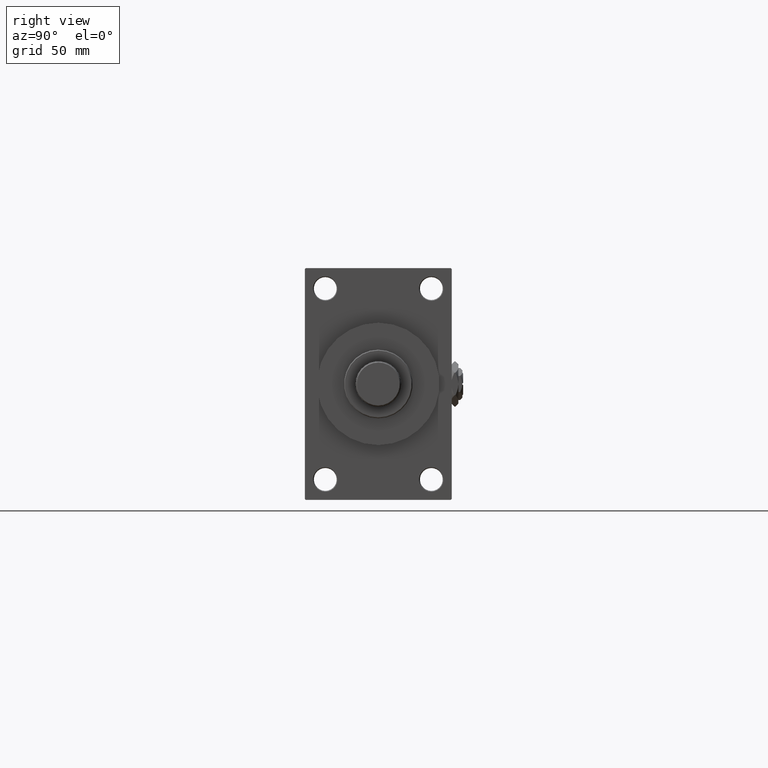
[diagram: clean part render]
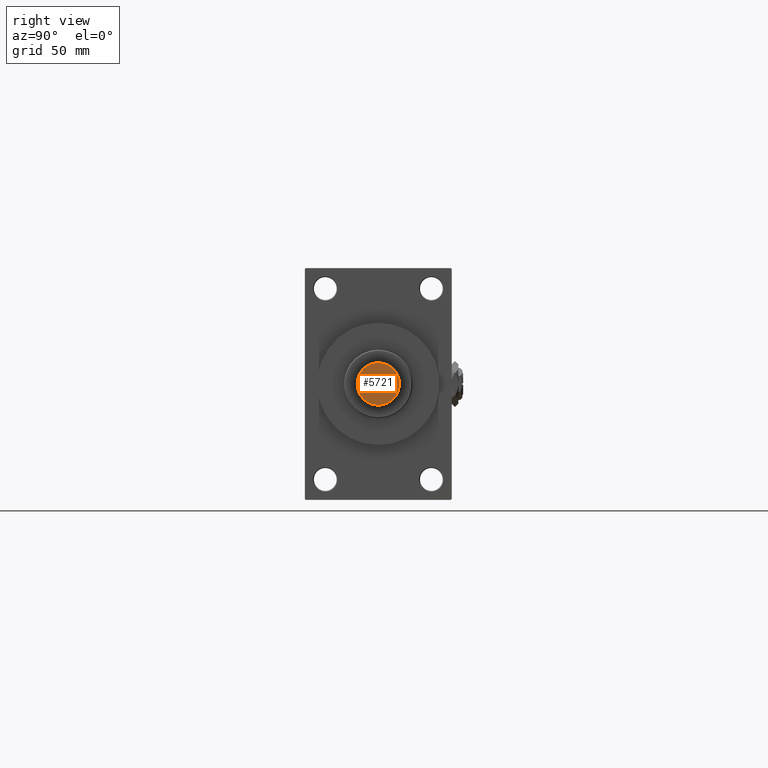
[diagram: same view with one face highlighted and labeled with its STEP entity id]
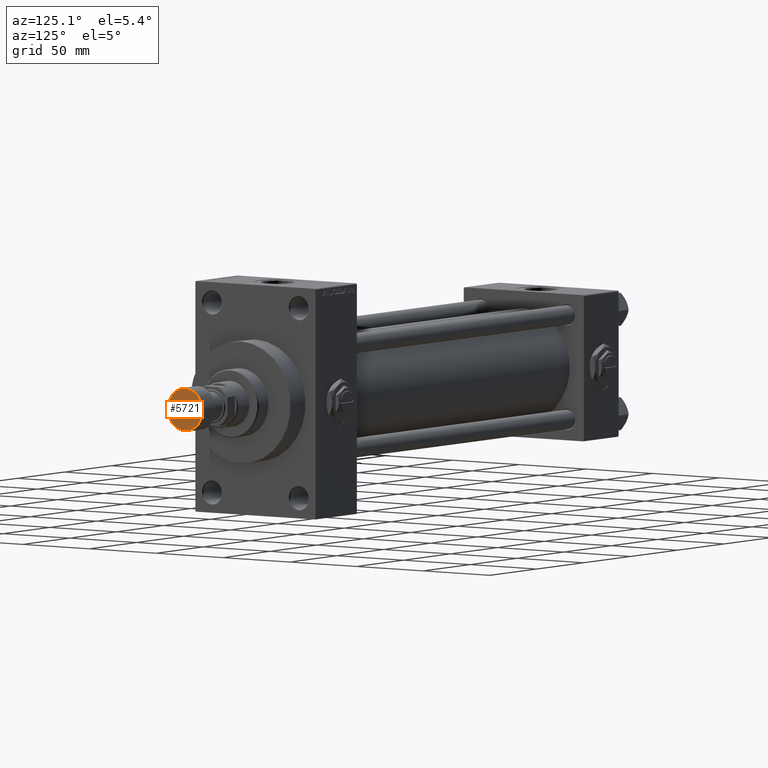
[diagram: same view with one face highlighted and labeled with its STEP entity id]
A machine part, right view. The second image highlights one B-rep face of the part: STEP entity #5721.
A second angle (auxiliary view) of the same face is appended — the face is thin or edge-on in the first view.
In plain terms, the highlighted planar face has unit normal (1, 0, 0).
Its self-contained STEP definition (entity closure, byte-faithful):
#956 = DIRECTION ( 'NONE',  ( 0.000000000000000000, 0.000000000000000000, 1.000000000000000000 ) ) ;
#1571 = CARTESIAN_POINT ( 'NONE',  ( -13.00000000000000000, 1.622657008870242882E-15, 0.000000000000000000 ) ) ;
#4986 = CARTESIAN_POINT ( 'NONE',  ( 0.000000000000000000, 0.000000000000000000, 0.000000000000000000 ) ) ;
#5721 = ADVANCED_FACE ( 'NONE', ( #24106 ), #20096, .T. ) ;
#7323 = CARTESIAN_POINT ( 'NONE',  ( 0.000000000000000000, 0.000000000000000000, 0.000000000000000000 ) ) ;
#7799 = CIRCLE ( 'NONE', #47997, 13.00000000000000000 ) ;
#8515 = DIRECTION ( 'NONE',  ( 1.000000000000000000, 0.000000000000000000, -0.000000000000000000 ) ) ;
#8589 = VERTEX_POINT ( 'NONE', #48486 ) ;
#13807 = VERTEX_POINT ( 'NONE', #1571 ) ;
#14006 = EDGE_CURVE ( 'NONE', #8589, #13807, #44514, .T. ) ;
#17848 = CARTESIAN_POINT ( 'NONE',  ( 0.000000000000000000, 0.000000000000000000, 0.000000000000000000 ) ) ;
#20096 = PLANE ( 'NONE',  #39530 ) ;
#21031 = EDGE_CURVE ( 'NONE', #13807, #8589, #7799, .T. ) ;
#22813 = AXIS2_PLACEMENT_3D ( 'NONE', #7323, #34480, #46794 ) ;
#23086 = DIRECTION ( 'NONE',  ( 1.000000000000000000, 0.000000000000000000, 0.000000000000000000 ) ) ;
#24106 = FACE_OUTER_BOUND ( 'NONE', #42074, .T. ) ;
#34480 = DIRECTION ( 'NONE',  ( 0.000000000000000000, 0.000000000000000000, 1.000000000000000000 ) ) ;
#36229 = ORIENTED_EDGE ( 'NONE', *, *, #21031, .T. ) ;
#39530 = AXIS2_PLACEMENT_3D ( 'NONE', #4986, #956, #8515 ) ;
#42074 = EDGE_LOOP ( 'NONE', ( #42873, #36229 ) ) ;
#42873 = ORIENTED_EDGE ( 'NONE', *, *, #14006, .T. ) ;
#44514 = CIRCLE ( 'NONE', #22813, 13.00000000000000000 ) ;
#46794 = DIRECTION ( 'NONE',  ( 1.000000000000000000, 0.000000000000000000, 0.000000000000000000 ) ) ;
#47997 = AXIS2_PLACEMENT_3D ( 'NONE', #17848, #48040, #23086 ) ;
#48040 = DIRECTION ( 'NONE',  ( 0.000000000000000000, 0.000000000000000000, 1.000000000000000000 ) ) ;
#48486 = CARTESIAN_POINT ( 'NONE',  ( 13.00000000000000000, 0.000000000000000000, 0.000000000000000000 ) ) ;